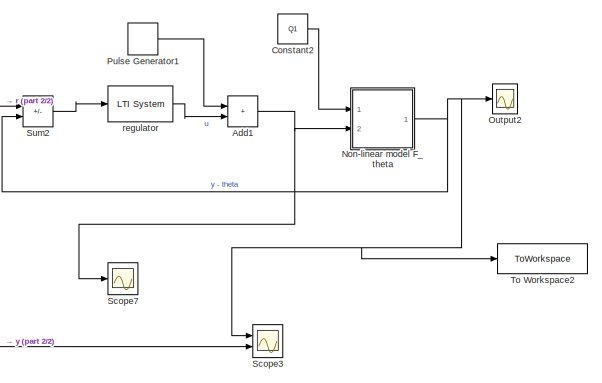
[diagram: root canvas - part 1/2, top right region]
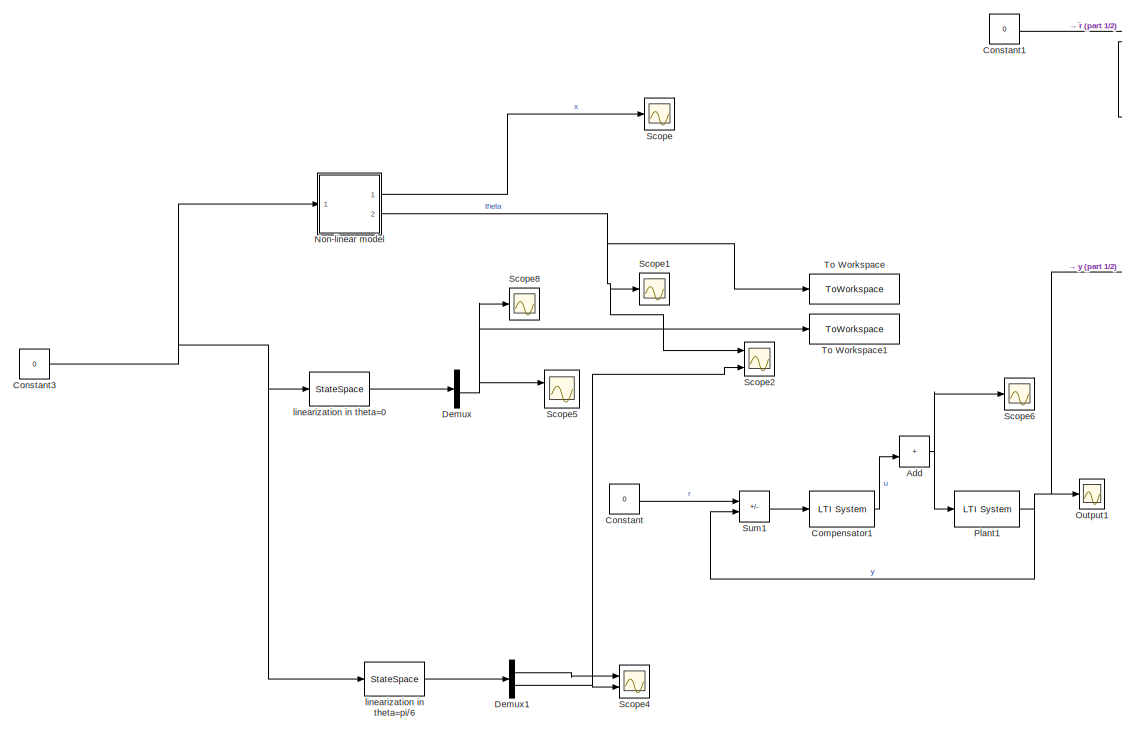
[diagram: root canvas - part 2/2, left side, full height]
MODEL slx_6976601d9dcf
KIND model
CONFIG AbsTol = auto
CONFIG EnableMultiTasking = off
CONFIG FixedStep = auto
CONFIG MaxStep = auto
CONFIG MinStep = auto
CONFIG RelTol = 1e-6
CONFIG SampleTimeConstraint = Unconstrained
CONFIG SolverName = VariableStepAuto
CONFIG StartTime = 0.0
CONFIG StopTime = 15
BLOCK [Sum] Add
  Commented = on
  IconShape = rectangular
  Ports = [2, 1]
BLOCK [Sum] Add1
  Commented = on
  IconShape = rectangular
  Ports = [2, 1]
BLOCK [Reference] Compensator1  REF=cstblocks/LTI System
  Commented = on
  Ports = [1, 1]
  SourceBlock = cstblocks/LTI System
  SourceProductBaseCode = CT
  SourceType = LTI Block
BLOCK [Constant] Constant
  Commented = on
  Value = 0
BLOCK [Constant] Constant1
  Commented = on
  Value = 0
BLOCK [Constant] Constant2
  Commented = on
  Value = Q1
BLOCK [Constant] Constant3
  Value = 0
BLOCK [Demux] Demux
  Ports = [1, 4]
BLOCK [Demux] Demux1
  Commented = on
  Outputs = 2
  Ports = [1, 2]
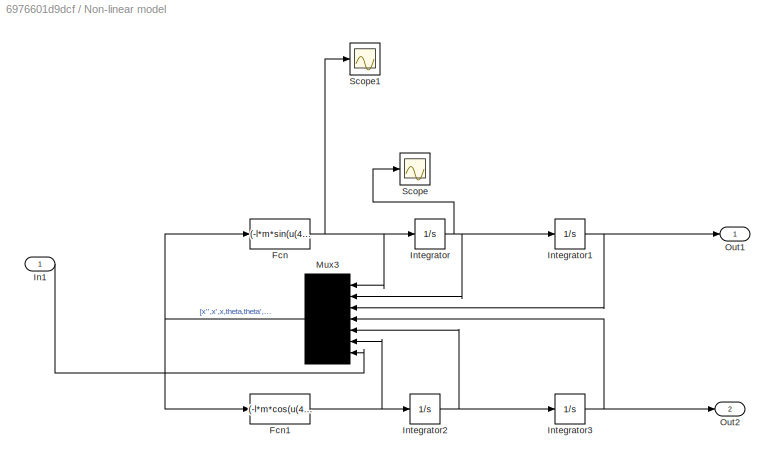
BLOCK [SubSystem] Non-linear model 
  Ports = [1, 2]
  RequestExecContextInheritance = off
BLOCK [Fcn] Non-linear model /Fcn
  Expr = (-l*m*sin(u(4))*u(5)^2+u(7)-m*g*cos(u(4))*sin(u(4)))/(-m*(cos(u(4))^2)+m+M)
BLOCK [Fcn] Non-linear model /Fcn1
  Expr = (-l*m*cos(u(4))*sin(u(4))*u(5)^2+u(7)*cos(u(4))-g*m*sin(u(4))-M*g*sin(u(4)))/(l*(-m*((cos(u(4)))^2)+M+m))
BLOCK [Inport] Non-linear model /In1
BLOCK [Integrator] Non-linear model /Integrator
  Ports = [1, 1]
BLOCK [Integrator] Non-linear model /Integrator1
  Ports = [1, 1]
BLOCK [Integrator] Non-linear model /Integrator2
  Ports = [1, 1]
BLOCK [Integrator] Non-linear model /Integrator3
  InitialCondition = pi/16
  Ports = [1, 1]
BLOCK [Mux] Non-linear model /Mux3
  DisplayOption = signals
  Inputs = 7
  NameLocation = top
  Ports = [7, 1]
BLOCK [Outport] Non-linear model /Out1
BLOCK [Outport] Non-linear model /Out2
  Port = 2
BLOCK [Scope] Non-linear model /Scope
  Floating = off
  NumInputPorts = 1
  Ports = [1]
  ScopeSpecificationString = Simulink.scopes.TimeScopeBlockCfg('CurrentConfiguration', extmgr.ConfigurationSet(extmgr.Configuration('Core','General UI',true),extmgr.Configuration('Core','Source UI',true),extmgr.Configuration('Sources','WiredSimulink',true,'DataLoggingVariableName','ScopeData1'),extmgr.Configuration('Visuals','Time Domain',true,'SerializedDisplays',{struct('MinYLimReal','-0.00312','MaxYLimReal','0.02812','YLab...<+1442ch>
BLOCK [Scope] Non-linear model /Scope1
  Floating = off
  NumInputPorts = 1
  Ports = [1]
  ScopeSpecificationString = Simulink.scopes.TimeScopeBlockCfg('CurrentConfiguration', extmgr.ConfigurationSet(extmgr.Configuration('Core','General UI',true),extmgr.Configuration('Core','Source UI',true),extmgr.Configuration('Sources','WiredSimulink',true,'DataLoggingVariableName','ScopeData2'),extmgr.Configuration('Visuals','Time Domain',true,'SerializedDisplays',{struct('MinYLimReal','-2.41849','MaxYLimReal','2.41999','YLab...<+1410ch>
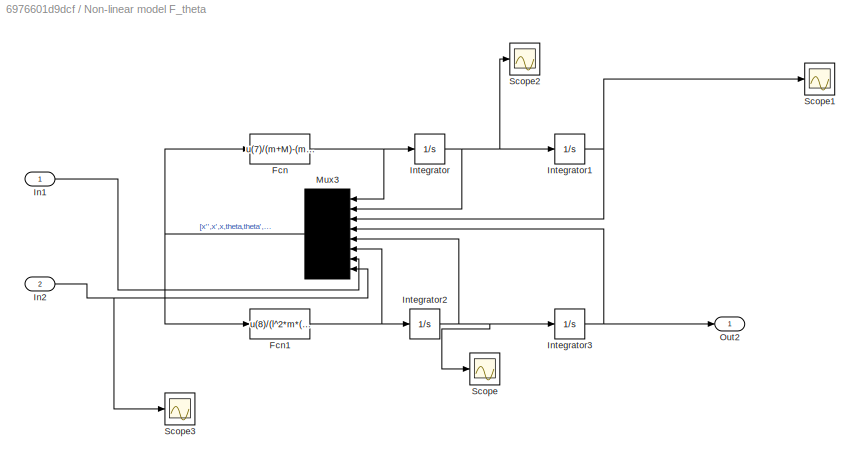
BLOCK [SubSystem] Non-linear model F_theta
  Commented = on
  Ports = [2, 1]
  RequestExecContextInheritance = off
BLOCK [Fcn] Non-linear model F_theta/Fcn
  Expr = u(7)/(m+M)-(m*l*sin(u(4))*(u(5))^2)/(m+M)+(m*l*cos(u(4))*u(6))/(m+M)
BLOCK [Fcn] Non-linear model F_theta/Fcn1
  Expr = u(8)/(l^2*m*(cos(u(4)))^2)+(u(1))/(l*cos(u(4)))+(sin(u(4))*(u(4))^2)/(cos(u(4)))-(g*sin(u(4)))/(l*(cos(u(4)))^2)
BLOCK [Inport] Non-linear model F_theta/In1
BLOCK [Inport] Non-linear model F_theta/In2
  Port = 2
BLOCK [Integrator] Non-linear model F_theta/Integrator
  Ports = [1, 1]
BLOCK [Integrator] Non-linear model F_theta/Integrator1
  Ports = [1, 1]
BLOCK [Integrator] Non-linear model F_theta/Integrator2
  Ports = [1, 1]
BLOCK [Integrator] Non-linear model F_theta/Integrator3
  InitialCondition = pi/6
  Ports = [1, 1]
BLOCK [Mux] Non-linear model F_theta/Mux3
  DisplayOption = signals
  Inputs = 8
  NameLocation = top
  Ports = [8, 1]
BLOCK [Outport] Non-linear model F_theta/Out2
BLOCK [Scope] Non-linear model F_theta/Scope
  Floating = off
  NumInputPorts = 1
  Ports = [1]
  ScopeSpecificationString = Simulink.scopes.TimeScopeBlockCfg('CurrentConfiguration', extmgr.ConfigurationSet(extmgr.Configuration('Core','General UI',true),extmgr.Configuration('Core','Source UI',true),extmgr.Configuration('Sources','WiredSimulink',true,'DataLoggingVariableName','ScopeData1'),extmgr.Configuration('Visuals','Time Domain',true,'SerializedDisplays',{struct('MinYLimReal','-938.10207','MaxYLimReal','790.48167','...<+1432ch>
BLOCK [Scope] Non-linear model F_theta/Scope1
  Floating = off
  NumInputPorts = 1
  Ports = [1]
  ScopeSpecificationString = Simulink.scopes.TimeScopeBlockCfg('CurrentConfiguration', extmgr.ConfigurationSet(extmgr.Configuration('Core','General UI',true),extmgr.Configuration('Core','Source UI',true),extmgr.Configuration('Sources','WiredSimulink',true,'DataLoggingVariableName','ScopeData3'),extmgr.Configuration('Visuals','Time Domain',true,'SerializedDisplays',{struct('MinYLimReal','-938.10207','MaxYLimReal','790.48167','...<+1432ch>
BLOCK [Scope] Non-linear model F_theta/Scope2
  Floating = off
  NumInputPorts = 1
  Ports = [1]
  ScopeSpecificationString = Simulink.scopes.TimeScopeBlockCfg('CurrentConfiguration', extmgr.ConfigurationSet(extmgr.Configuration('Core','General UI',true),extmgr.Configuration('Core','Source UI',true),extmgr.Configuration('Sources','WiredSimulink',true,'DataLoggingVariableName','ScopeData4'),extmgr.Configuration('Visuals','Time Domain',true,'SerializedDisplays',{struct('MinYLimReal','-94.54049','MaxYLimReal','73.12733','YL...<+1422ch>
BLOCK [Scope] Non-linear model F_theta/Scope3
  Floating = off
  NumInputPorts = 1
  Ports = [1]
  ScopeSpecificationString = Simulink.scopes.TimeScopeBlockCfg('CurrentConfiguration', extmgr.ConfigurationSet(extmgr.Configuration('Core','General UI',true),extmgr.Configuration('Core','Source UI',true),extmgr.Configuration('Sources','WiredSimulink',true,'DataLoggingVariableName','ScopeData5'),extmgr.Configuration('Visuals','Time Domain',true,'SerializedDisplays',{struct('MinYLimReal','-938.10207','MaxYLimReal','790.48167','...<+1432ch>
BLOCK [Scope] Output1
  Commented = on
  Floating = off
  NumInputPorts = 1
  Ports = [1]
  ScopeSpecificationString = Simulink.scopes.TimeScopeBlockCfg('CurrentConfiguration', extmgr.ConfigurationSet(extmgr.Configuration('Core','General UI',true),extmgr.Configuration('Core','Source UI',true),extmgr.Configuration('Sources','WiredSimulink',true,'DataLoggingVariableName','ScopeData2'),extmgr.Configuration('Visuals','Time Domain',true,'SerializedDisplays',{struct('MinYLimReal','-0.000003','MaxYLimReal','0.000018','YL...<+1441ch>
BLOCK [Scope] Output2
  Commented = on
  Floating = off
  NumInputPorts = 1
  Ports = [1]
  ScopeSpecificationString = Simulink.scopes.TimeScopeBlockCfg('CurrentConfiguration', extmgr.ConfigurationSet(extmgr.Configuration('Core','General UI',true),extmgr.Configuration('Core','Source UI',true),extmgr.Configuration('Sources','WiredSimulink',true,'DataLoggingVariableName','ScopeData1'),extmgr.Configuration('Visuals','Time Domain',true,'SerializedDisplays',{struct('MinYLimReal','-0.30625','MaxYLimReal','0.57648','YLab...<+1440ch>
BLOCK [Reference] Plant1  REF=cstblocks/LTI System
  Commented = on
  Ports = [1, 1]
  SourceBlock = cstblocks/LTI System
  SourceProductBaseCode = CT
  SourceType = LTI Block
BLOCK [DiscretePulseGenerator] Pulse Generator1
  Amplitude = Q2
  Commented = on
  Period = 10
  PhaseDelay = 5
  Ports = [0, 1]
  PulseType = Time based
  PulseWidth = 0.001
BLOCK [Scope] Scope
  Floating = off
  NumInputPorts = 1
  Ports = [1]
  ScopeSpecificationString = Simulink.scopes.TimeScopeBlockCfg('CurrentConfiguration', extmgr.ConfigurationSet(extmgr.Configuration('Core','General UI',true),extmgr.Configuration('Core','Source UI',true),extmgr.Configuration('Sources','WiredSimulink',true),extmgr.Configuration('Visuals','Time Domain',true,'SerializedDisplays',{struct('MinYLimReal','-0.04481','MaxYLimReal','0.00498','YLabelReal','','MinYLimMag','0.00000','MaxY...<+1369ch>
BLOCK [Scope] Scope1
  Floating = off
  NumInputPorts = 1
  Ports = [1]
  ScopeSpecificationString = Simulink.scopes.TimeScopeBlockCfg('CurrentConfiguration', extmgr.ConfigurationSet(extmgr.Configuration('Core','General UI',true),extmgr.Configuration('Core','Source UI',true),extmgr.Configuration('Sources','WiredSimulink',true,'DataLoggingVariableName','ScopeData1'),extmgr.Configuration('Visuals','Time Domain',true,'SerializedDisplays',{struct('MinYLimReal','-0.65234','MaxYLimReal','0.65426','YLab...<+1435ch>
BLOCK [Scope] Scope2
  Floating = off
  NumInputPorts = 3
  Ports = [3]
  ScopeSpecificationString = Simulink.scopes.TimeScopeBlockCfg('CurrentConfiguration', extmgr.ConfigurationSet(extmgr.Configuration('Core','General UI',true),extmgr.Configuration('Core','Source UI',true),extmgr.Configuration('Sources','WiredSimulink',true,'DataLoggingVariableName','ScopeData2'),extmgr.Configuration('Visuals','Time Domain',true,'SerializedDisplays',{struct('MinYLimReal','-3.67079','MaxYLimReal','3.67329','YLab...<+1459ch>
BLOCK [Scope] Scope3
  Commented = on
  Floating = off
  NumInputPorts = 2
  Ports = [2]
  ScopeSpecificationString = Simulink.scopes.TimeScopeBlockCfg('CurrentConfiguration', extmgr.ConfigurationSet(extmgr.Configuration('Core','General UI',true),extmgr.Configuration('Core','Source UI',true),extmgr.Configuration('Sources','WiredSimulink',true,'DataLoggingVariableName','ScopeData1'),extmgr.Configuration('Visuals','Time Domain',true,'SerializedDisplays',{struct('MinYLimReal','-0.00000007','MaxYLimReal','0.0000004',...<+1432ch>
BLOCK [Scope] Scope4
  Commented = on
  Floating = off
  NumInputPorts = 2
  Ports = [2]
  ScopeSpecificationString = Simulink.scopes.TimeScopeBlockCfg('CurrentConfiguration', extmgr.ConfigurationSet(extmgr.Configuration('Core','General UI',true),extmgr.Configuration('Core','Source UI',true),extmgr.Configuration('Sources','WiredSimulink',true,'DataLoggingVariableName','ScopeData2'),extmgr.Configuration('Visuals','Time Domain',true,'SerializedDisplays',{struct('MinYLimReal','-0.000027','MaxYLimReal','0.000027','YL...<+1419ch>
BLOCK [Scope] Scope5
  Floating = off
  NumInputPorts = 2
  Ports = [2]
  ScopeSpecificationString = Simulink.scopes.TimeScopeBlockCfg('CurrentConfiguration', extmgr.ConfigurationSet(extmgr.Configuration('Core','General UI',true),extmgr.Configuration('Core','Source UI',true),extmgr.Configuration('Sources','WiredSimulink',true,'DataLoggingVariableName','ScopeData1'),extmgr.Configuration('Visuals','Time Domain',true,'SerializedDisplays',{struct('MinYLimReal','-0.32724','MaxYLimReal','0.32725','YLab...<+1432ch>
BLOCK [Scope] Scope6
  Commented = on
  Floating = off
  NumInputPorts = 1
  Ports = [1]
  ScopeSpecificationString = Simulink.scopes.TimeScopeBlockCfg('CurrentConfiguration', extmgr.ConfigurationSet(extmgr.Configuration('Core','General UI',true),extmgr.Configuration('Core','Source UI',true),extmgr.Configuration('Sources','WiredSimulink',true,'DataLoggingVariableName','ScopeData1'),extmgr.Configuration('Visuals','Time Domain',true,'SerializedDisplays',{struct('MinYLimReal','-27.48263','MaxYLimReal','114.16474','Y...<+1446ch>
BLOCK [Scope] Scope7
  Commented = on
  Floating = off
  NumInputPorts = 1
  Ports = [1]
  ScopeSpecificationString = Simulink.scopes.TimeScopeBlockCfg('CurrentConfiguration', extmgr.ConfigurationSet(extmgr.Configuration('Core','General UI',true),extmgr.Configuration('Core','Source UI',true),extmgr.Configuration('Sources','WiredSimulink',true,'DataLoggingVariableName','ScopeData2'),extmgr.Configuration('Visuals','Time Domain',true,'SerializedDisplays',{struct('MinYLimReal','-618645.60168','MaxYLimReal','625055.70...<+1420ch>
BLOCK [Scope] Scope8
  Floating = off
  NumInputPorts = 1
  Ports = [1]
  ScopeSpecificationString = Simulink.scopes.TimeScopeBlockCfg('CurrentConfiguration', extmgr.ConfigurationSet(extmgr.Configuration('Core','General UI',true),extmgr.Configuration('Core','Source UI',true),extmgr.Configuration('Sources','WiredSimulink',true,'DataLoggingVariableName','ScopeData1'),extmgr.Configuration('Visuals','Time Domain',true,'SerializedDisplays',{struct('MinYLimReal','-0.32724','MaxYLimReal','0.32725','YLab...<+1397ch>
BLOCK [Sum] Sum1
  Commented = on
  IconShape = rectangular
  InputSameDT = on
  Inputs = +-
  OutDataTypeStr = Inherit: Same as first input
  Ports = [2, 1]
  SaturateOnIntegerOverflow = on
BLOCK [Sum] Sum2
  Commented = on
  IconShape = rectangular
  InputSameDT = on
  Inputs = +-
  OutDataTypeStr = Inherit: Same as first input
  Ports = [2, 1]
  SaturateOnIntegerOverflow = on
BLOCK [ToWorkspace] To Workspace
  FixptAsFi = on
  MaxDataPoints = inf
  Ports = [1]
  SampleTime = -1
  SaveFormat = Timeseries
  VariableName = nonLinearTheta
BLOCK [ToWorkspace] To Workspace1
  FixptAsFi = on
  MaxDataPoints = inf
  Ports = [1]
  SampleTime = -1
  SaveFormat = Timeseries
  VariableName = linearTheta
BLOCK [ToWorkspace] To Workspace2
  Commented = on
  FixptAsFi = on
  MaxDataPoints = inf
  Ports = [1]
  SampleTime = -1
  SaveFormat = Timeseries
  VariableName = nonLinearRegulated
BLOCK [StateSpace] linearization in theta=0
  A = A
  B = B
  C = C
  D = D
  InitialCondition = [0,0,pi/16,0]
  Ports = [1, 1]
BLOCK [StateSpace] linearization in theta=pi//6
  A = A2
  B = B2
  C = C2
  Commented = on
  D = D2
  InitialCondition = 0
  Ports = [1, 1]
BLOCK [Reference] regulator  REF=cstblocks/LTI System
  Commented = on
  Ports = [1, 1]
  SourceBlock = cstblocks/LTI System
  SourceProductBaseCode = CT
  SourceType = LTI Block
NET Add1:1 -> Non-linear model F_theta:2, Scope7:1
NET Add:1 -> Plant1:1, Scope6:1
LINE Compensator1:1 -> Add:2
LINE Constant1:1 -> Sum2:1
LINE Constant2:1 -> Non-linear model F_theta:1
NET Constant3:1 -> Non-linear model :1, linearization in theta=0:1, linearization in theta=pi//6:1
LINE Constant:1 -> Sum1:1
LINE Demux1:1 -> Scope4:1
NET Demux1:2 -> Scope2:3, Scope4:2
NET Demux:3 -> Scope5:1, Scope8:1, To Workspace1:1
NET Non-linear model /Fcn1:1 -> Non-linear model /Integrator2:1, Non-linear model /Mux3:6
NET Non-linear model /Fcn:1 -> Non-linear model /Integrator:1, Non-linear model /Mux3:1, Non-linear model /Scope1:1
LINE Non-linear model /In1:1 -> Non-linear model /Mux3:7
NET Non-linear model /Integrator1:1 -> Non-linear model /Mux3:3, Non-linear model /Out1:1
NET Non-linear model /Integrator2:1 -> Non-linear model /Integrator3:1, Non-linear model /Mux3:5
NET Non-linear model /Integrator3:1 -> Non-linear model /Mux3:4, Non-linear model /Out2:1
NET Non-linear model /Integrator:1 -> Non-linear model /Integrator1:1, Non-linear model /Mux3:2, Non-linear model /Scope:1
NET Non-linear model /Mux3:1 -> Non-linear model /Fcn1:1, Non-linear model /Fcn:1
LINE Non-linear model :1 -> Scope:1
NET Non-linear model :2 -> Scope1:1, Scope2:1, To Workspace:1
NET Non-linear model F_theta/Fcn1:1 -> Non-linear model F_theta/Integrator2:1, Non-linear model F_theta/Mux3:6
NET Non-linear model F_theta/Fcn:1 -> Non-linear model F_theta/Integrator:1, Non-linear model F_theta/Mux3:1
LINE Non-linear model F_theta/In1:1 -> Non-linear model F_theta/Mux3:7
NET Non-linear model F_theta/In2:1 -> Non-linear model F_theta/Mux3:8, Non-linear model F_theta/Scope3:1
NET Non-linear model F_theta/Integrator1:1 -> Non-linear model F_theta/Mux3:3, Non-linear model F_theta/Scope1:1
NET Non-linear model F_theta/Integrator2:1 -> Non-linear model F_theta/Integrator3:1, Non-linear model F_theta/Mux3:5, Non-linear model F_theta/Scope:1
NET Non-linear model F_theta/Integrator3:1 -> Non-linear model F_theta/Mux3:4, Non-linear model F_theta/Out2:1
NET Non-linear model F_theta/Integrator:1 -> Non-linear model F_theta/Integrator1:1, Non-linear model F_theta/Mux3:2, Non-linear model F_theta/Scope2:1
NET Non-linear model F_theta/Mux3:1 -> Non-linear model F_theta/Fcn1:1, Non-linear model F_theta/Fcn:1
NET Non-linear model F_theta:1 -> Output2:1, Scope3:1, Sum2:2, To Workspace2:1
NET Plant1:1 -> Output1:1, Scope3:2, Sum1:2
LINE Pulse Generator1:1 -> Add1:1
LINE Sum1:1 -> Compensator1:1
LINE Sum2:1 -> regulator:1
LINE linearization in theta=0:1 -> Demux:1
LINE linearization in theta=pi//6:1 -> Demux1:1
LINE regulator:1 -> Add1:2
note: NET lines group one-source signal fan-out (src -> all destinations, sorted); 1:1 wires keep LINE
